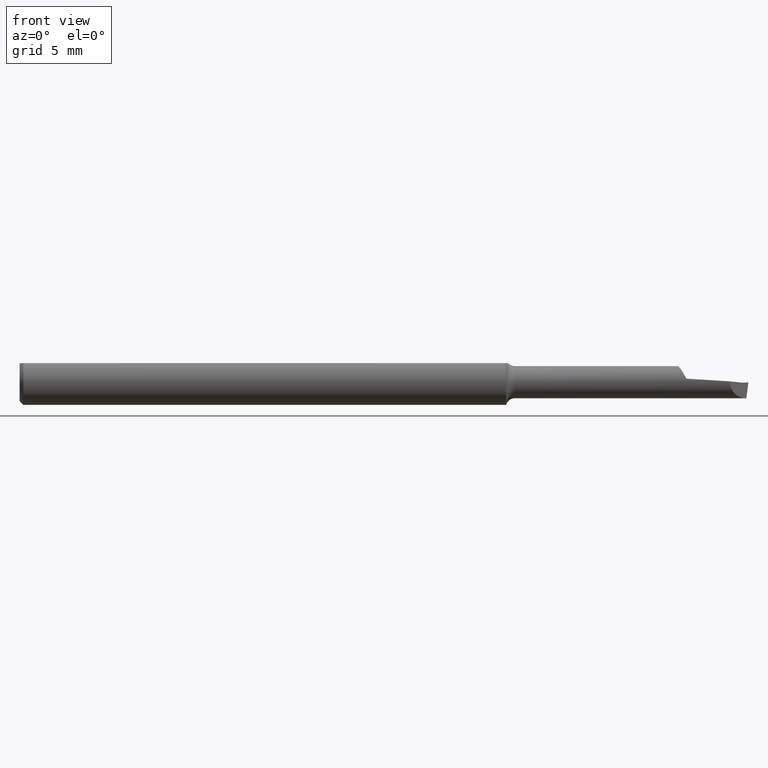
[diagram: clean part render]
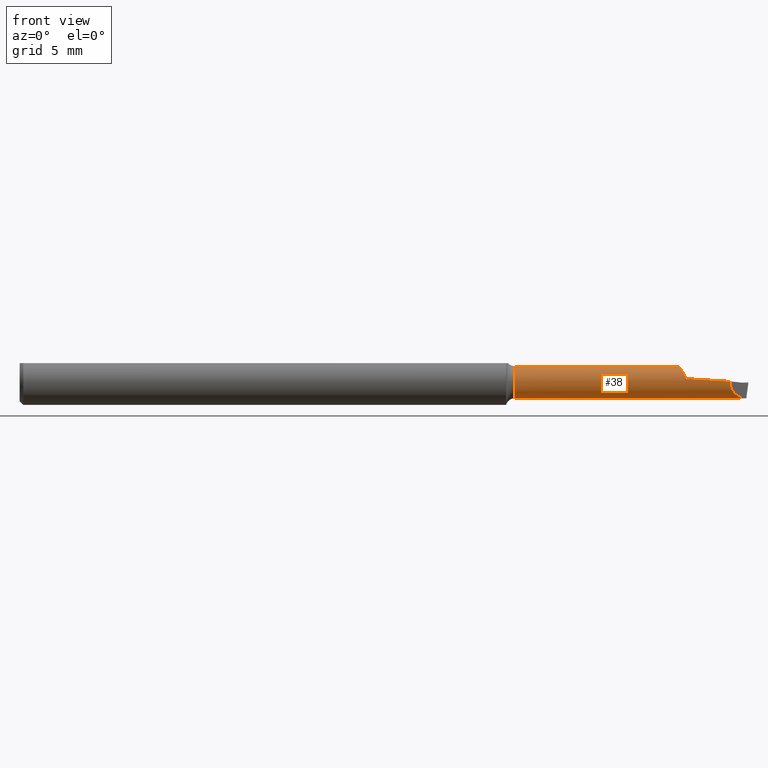
[diagram: same view with one face highlighted and labeled with its STEP entity id]
A machine part, front view. The second image highlights one B-rep face of the part: STEP entity #38.
In plain terms, the highlighted cylindrical surface (edge-blend (fillet) strip) has radius 1.1176 mm, axis along (-1, -0, -0).
Its self-contained STEP definition (entity closure, byte-faithful):
#3 = CARTESIAN_POINT ( 'NONE',  ( 1.948223976446624262, -0.04526238000169507947, -0.02459712911878014080 ) ) ;
#36 = EDGE_LOOP ( 'NONE', ( #662, #234, #414, #168, #618, #775, #622 ) ) ;
#38 = ADVANCED_FACE ( 'NONE', ( #600 ), #594, .T. ) ;
#61 = CARTESIAN_POINT ( 'NONE',  ( 1.806645572135293198, -1.605047027801943588E-06, 0.04400469612014611120 ) ) ;
#106 = VECTOR ( 'NONE', #641, 39.37007874015748143 ) ;
#117 = VERTEX_POINT ( 'NONE', #748 ) ;
#119 = DIRECTION ( 'NONE',  ( -1.000000000000000000, -0.000000000000000000, -0.000000000000000000 ) ) ;
#125 = CARTESIAN_POINT ( 'NONE',  ( 1.814786095772713770, -0.02588050179024483505, 0.03558385482274704914 ) ) ;
#129 = CARTESIAN_POINT ( 'NONE',  ( 1.813898009644643095, -0.02410727843304570975, 0.03683892710515036112 ) ) ;
#138 = CARTESIAN_POINT ( 'NONE',  ( 1.815183125529622687, -0.02664943211677352208, 0.03501616045287824636 ) ) ;
#150 = CARTESIAN_POINT ( 'NONE',  ( 1.993486356448318952, 2.561107494060246767E-17, -0.04399999999999999745 ) ) ;
#168 = ORIENTED_EDGE ( 'NONE', *, *, #676, .T. ) ;
#190 = CARTESIAN_POINT ( 'NONE',  ( 1.814690202429094734, -0.02569215562060223751, 0.03572036288893589567 ) ) ;
#196 = EDGE_CURVE ( 'NONE', #705, #117, #724, .T. ) ;
#234 = ORIENTED_EDGE ( 'NONE', *, *, #196, .T. ) ;
#259 = CARTESIAN_POINT ( 'NONE',  ( 1.359099325716708107, 0.000000000000000000, 0.000000000000000000 ) ) ;
#263 = DIRECTION ( 'NONE',  ( 0.000000000000000000, 0.000000000000000000, 1.000000000000000000 ) ) ;
#268 = CARTESIAN_POINT ( 'NONE',  ( 1.815464310423884120, -0.02717308892188127420, 0.03460964738091050485 ) ) ;
#274 = CARTESIAN_POINT ( 'NONE',  ( 1.814916789186051371, -0.02613563337595397121, 0.03539735944788183208 ) ) ;
#291 = VERTEX_POINT ( 'NONE', #719 ) ;
#315 = DIRECTION ( 'NONE',  ( 0.000000000000000000, 0.000000000000000000, 1.000000000000000000 ) ) ;
#323 = CARTESIAN_POINT ( 'NONE',  ( 0.000000000000000000, 5.388445916248349113E-18, -0.04399999999999996275 ) ) ;
#326 = CARTESIAN_POINT ( 'NONE',  ( 1.823979950717056875, -0.03902664238057330232, 0.02091026233644392371 ) ) ;
#330 = CARTESIAN_POINT ( 'NONE',  ( 1.810833164853624888, -0.01675818655935261761, 0.04076568780972762707 ) ) ;
#331 =( BOUNDED_CURVE ( )  B_SPLINE_CURVE ( 3, ( #490, #3, #822, #150 ),
 .UNSPECIFIED., .F., .T. ) 
 B_SPLINE_CURVE_WITH_KNOTS ( ( 4, 4 ),
 ( 6.234062998859242200, 7.853981633974482790 ),
 .UNSPECIFIED. ) 
 CURVE ( )  GEOMETRIC_REPRESENTATION_ITEM ( )  RATIONAL_B_SPLINE_CURVE ( ( 1.000000000000000000, 0.7930185987682636384, 0.7930185987682636384, 1.000000000000000000 ) ) 
 REPRESENTATION_ITEM ( '' )  );
#334 = EDGE_CURVE ( 'NONE', #345, #664, #672, .T. ) ;
#335 = CARTESIAN_POINT ( 'NONE',  ( 1.359099325716708107, 0.000000000000000000, 0.04399999999999992806 ) ) ;
#345 = VERTEX_POINT ( 'NONE', #658 ) ;
#362 = EDGE_CURVE ( 'NONE', #705, #437, #523, .T. ) ;
#372 = CARTESIAN_POINT ( 'NONE',  ( 1.949539431800300759, -0.04394692464801779747, 0.002160512434919499136 ) ) ;
#393 = CARTESIAN_POINT ( 'NONE',  ( 1.829992566228702877, -0.04291472308783400580, 0.009712185248157291506 ) ) ;
#406 = CARTESIAN_POINT ( 'NONE',  ( 1.817210813992215623, -0.03034791570795263710, 0.03206382742248452267 ) ) ;
#414 = ORIENTED_EDGE ( 'NONE', *, *, #795, .F. ) ;
#415 = CARTESIAN_POINT ( 'NONE',  ( 1.840000000000000302, 0.000000000000000000, -0.04399999999999999745 ) ) ;
#437 = VERTEX_POINT ( 'NONE', #459 ) ;
#448 = AXIS2_PLACEMENT_3D ( 'NONE', #732, #677, #315 ) ;
#459 = CARTESIAN_POINT ( 'NONE',  ( 1.359099325716708107, 6.512059354466044426E-18, -0.04399999999999992806 ) ) ;
#473 = CARTESIAN_POINT ( 'NONE',  ( 1.808444069729441050, -0.009427309947746567026, 0.04328785400758622393 ) ) ;
#478 = CARTESIAN_POINT ( 'NONE',  ( 1.826799474658925782, -0.04153783979242344632, 0.01579910718997215927 ) ) ;
#479 = AXIS2_PLACEMENT_3D ( 'NONE', #259, #533, #263 ) ;
#490 = CARTESIAN_POINT ( 'NONE',  ( 1.949539431800300759, -0.04394692464801779747, 0.002160512434919499136 ) ) ;
#499 = B_SPLINE_CURVE_WITH_KNOTS ( 'NONE', 3,
 ( #541, #478, #326, #754, #406, #268, #138, #274, #125, #190, #546, #129, #678, #529, #330, #473, #882, #61 ),
 .UNSPECIFIED., .F., .F.,
 ( 4, 2, 2, 1, 2, 2, 1, 2, 2, 4 ),
 ( 0.000000000000000000, 0.2283272976861365766, 0.4566545953722731532, 0.4851955075830431952, 0.4994659636884280496, 0.5066011917411206156, 0.5137364197938132371, 0.5708182442153262315, 0.6849818930583525534, 0.9133091907444047530 ),
 .UNSPECIFIED. ) ;
#523 = LINE ( 'NONE', #323, #765 ) ;
#529 = CARTESIAN_POINT ( 'NONE',  ( 1.811745317520776499, -0.01920173961563133996, 0.03968366555626485354 ) ) ;
#533 = DIRECTION ( 'NONE',  ( -1.000000000000000000, -0.000000000000000000, -0.000000000000000000 ) ) ;
#541 = CARTESIAN_POINT ( 'NONE',  ( 1.829992566228702877, -0.04291472308783400580, 0.009712185248157291506 ) ) ;
#546 = CARTESIAN_POINT ( 'NONE',  ( 1.814545427257609589, -0.02540460560934992493, 0.03592543944315640392 ) ) ;
#569 = VERTEX_POINT ( 'NONE', #372 ) ;
#591 = EDGE_CURVE ( 'NONE', #291, #345, #499, .T. ) ;
#594 = CYLINDRICAL_SURFACE ( 'NONE', #448, 0.04399999999999996275 ) ;
#598 = DIRECTION ( 'NONE',  ( -1.000000000000000000, -0.000000000000000000, -0.000000000000000000 ) ) ;
#599 = CIRCLE ( 'NONE', #479, 0.04399999999999992806 ) ;
#600 = FACE_OUTER_BOUND ( 'NONE', #36, .T. ) ;
#615 = CARTESIAN_POINT ( 'NONE',  ( 1.949539431800300759, -0.04394692464801779747, 0.002160512434919499136 ) ) ;
#618 = ORIENTED_EDGE ( 'NONE', *, *, #591, .T. ) ;
#622 = ORIENTED_EDGE ( 'NONE', *, *, #692, .F. ) ;
#641 = DIRECTION ( 'NONE',  ( 1.000000000000000000, -0.000000000000000000, -0.000000000000000000 ) ) ;
#658 = CARTESIAN_POINT ( 'NONE',  ( 1.806645572135293198, -1.605047027801943588E-06, 0.04400469612014611120 ) ) ;
#662 = ORIENTED_EDGE ( 'NONE', *, *, #362, .F. ) ;
#664 = VERTEX_POINT ( 'NONE', #335 ) ;
#672 = LINE ( 'NONE', #875, #874 ) ;
#676 = EDGE_CURVE ( 'NONE', #569, #291, #817, .T. ) ;
#677 = DIRECTION ( 'NONE',  ( -1.000000000000000000, -0.000000000000000000, -0.000000000000000000 ) ) ;
#678 = CARTESIAN_POINT ( 'NONE',  ( 1.813287227960137749, -0.02278125752315570546, 0.03766814748199937002 ) ) ;
#692 = EDGE_CURVE ( 'NONE', #437, #664, #599, .T. ) ;
#705 = VERTEX_POINT ( 'NONE', #415 ) ;
#719 = CARTESIAN_POINT ( 'NONE',  ( 1.829992566228702877, -0.04291472308783400580, 0.009712185248157291506 ) ) ;
#724 = LINE ( 'NONE', #787, #106 ) ;
#732 = CARTESIAN_POINT ( 'NONE',  ( 0.000000000000000000, 0.000000000000000000, 0.000000000000000000 ) ) ;
#748 = CARTESIAN_POINT ( 'NONE',  ( 1.993486356448318952, 2.561107494060246767E-17, -0.04399999999999999745 ) ) ;
#754 = CARTESIAN_POINT ( 'NONE',  ( 1.819185620383701574, -0.03342947752350876323, 0.02903080982310496730 ) ) ;
#765 = VECTOR ( 'NONE', #119, 39.37007874015748143 ) ;
#775 = ORIENTED_EDGE ( 'NONE', *, *, #334, .T. ) ;
#787 = CARTESIAN_POINT ( 'NONE',  ( 1.799999999999999822, 0.000000000000000000, -0.04399999999999999745 ) ) ;
#795 = EDGE_CURVE ( 'NONE', #569, #117, #331, .T. ) ;
#817 =( BOUNDED_CURVE ( )  B_SPLINE_CURVE ( 2, ( #615, #872, #393 ),
 .UNSPECIFIED., .F., .F. ) 
 B_SPLINE_CURVE_WITH_KNOTS ( ( 3, 3 ),
 ( 0.09455965140952782289, 0.3148910267384269490 ),
 .UNSPECIFIED. ) 
 CURVE ( )  GEOMETRIC_REPRESENTATION_ITEM ( )  RATIONAL_B_SPLINE_CURVE ( ( 0.9833022579123034124, 0.9780948911032535387, 0.9802687885623562192 ) ) 
 REPRESENTATION_ITEM ( '' )  );
#822 = CARTESIAN_POINT ( 'NONE',  ( 1.966696399294493691, -0.02678995715382523346, -0.04399999999999997663 ) ) ;
#872 = CARTESIAN_POINT ( 'NONE',  ( 1.889951090927360022, -0.04375909165793846062, 0.005981218174915104921 ) ) ;
#874 = VECTOR ( 'NONE', #598, 39.37007874015748143 ) ;
#875 = CARTESIAN_POINT ( 'NONE',  ( 0.000000000000000000, 0.000000000000000000, 0.04399999999999996275 ) ) ;
#882 = CARTESIAN_POINT ( 'NONE',  ( 1.807314490149678265, -0.004551947338656386552, 0.04399987081629620073 ) ) ;